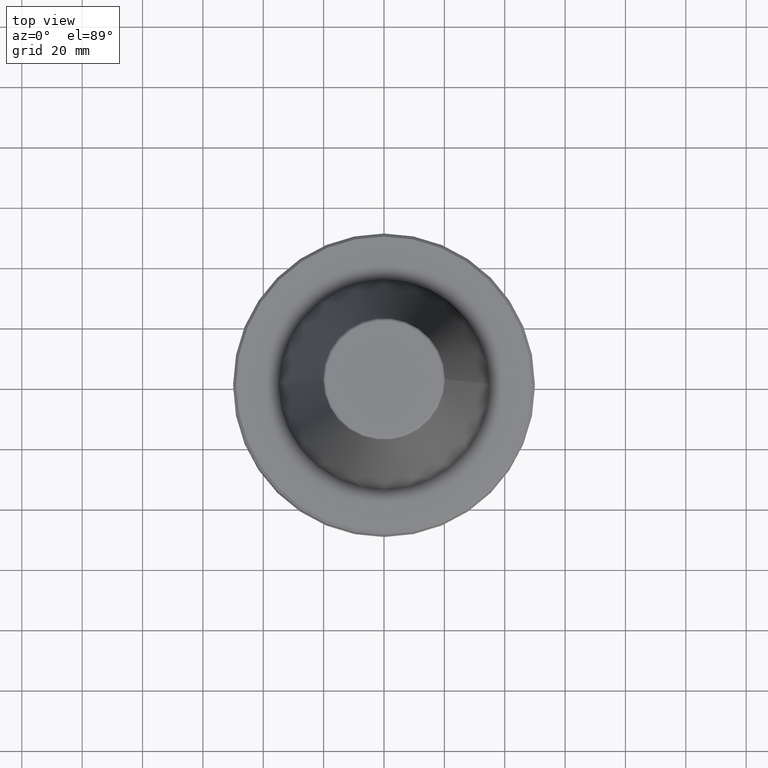
[diagram: clean part render]
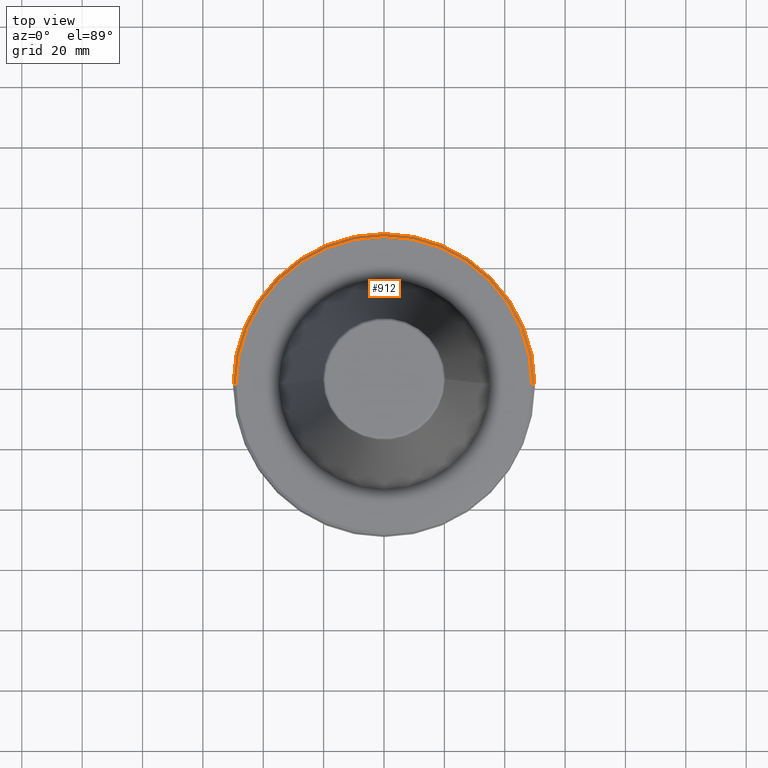
[diagram: same view with one face highlighted and labeled with its STEP entity id]
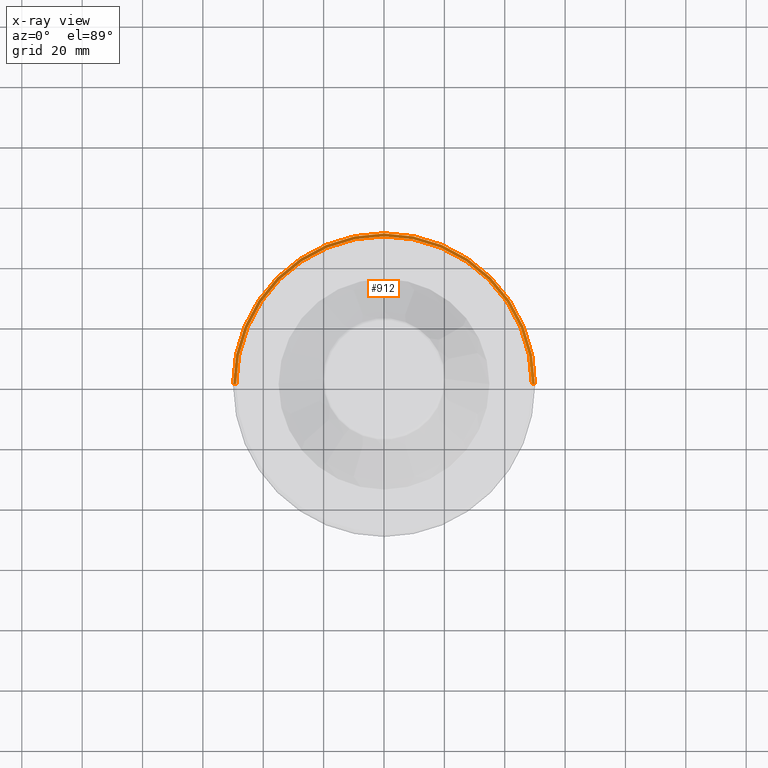
[diagram: x-ray of the same camera — body ghosted, the highlighted face saturated]
A machine part, top view. The second image highlights one B-rep face of the part: STEP entity #912.
The next image is the same camera in x-ray: the body ghosted, the highlighted face saturated — about 0% of this face is hidden behind the body in this view.
In plain terms, the highlighted conical surface has half-angle 45 deg.
Its self-contained STEP definition (entity closure, byte-faithful):
#9 = LINE ( 'NONE', #976, #795 ) ;
#14 = ORIENTED_EDGE ( 'NONE', *, *, #464, .T. ) ;
#82 = CARTESIAN_POINT ( 'NONE',  ( -49.00000000000015600, 0.0000000000000000000, -3.000000000001223900 ) ) ;
#88 = LINE ( 'NONE', #478, #473 ) ;
#105 = CARTESIAN_POINT ( 'NONE',  ( -50.00000000000027000, 6.123233995736798400E-015, -4.000000000001335800 ) ) ;
#142 = EDGE_LOOP ( 'NONE', ( #703, #396, #14, #990 ) ) ;
#180 = AXIS2_PLACEMENT_3D ( 'NONE', #210, #257, #313 ) ;
#186 = CIRCLE ( 'NONE', #381, 49.00000000000015600 ) ;
#210 = CARTESIAN_POINT ( 'NONE',  ( 0.0000000000000000000, 0.0000000000000000000, -4.000000000001335800 ) ) ;
#247 = DIRECTION ( 'NONE',  ( -0.7071067811865474600, 0.0000000000000000000, -0.7071067811865475700 ) ) ;
#252 = EDGE_CURVE ( 'NONE', #782, #487, #88, .T. ) ;
#257 = DIRECTION ( 'NONE',  ( 0.0000000000000000000, 0.0000000000000000000, -1.000000000000000000 ) ) ;
#259 = VERTEX_POINT ( 'NONE', #105 ) ;
#262 = CARTESIAN_POINT ( 'NONE',  ( 0.0000000000000000000, 0.0000000000000000000, -3.000000000001223900 ) ) ;
#309 = CARTESIAN_POINT ( 'NONE',  ( 49.00000000000015600, 6.062001655779424500E-015, -3.000000000001223900 ) ) ;
#313 = DIRECTION ( 'NONE',  ( -1.000000000000000000, 0.0000000000000000000, 0.0000000000000000000 ) ) ;
#381 = AXIS2_PLACEMENT_3D ( 'NONE', #262, #998, #579 ) ;
#394 = CONICAL_SURFACE ( 'NONE', #180, 50.00000000000027000, 0.7853981633974482800 ) ;
#396 = ORIENTED_EDGE ( 'NONE', *, *, #252, .T. ) ;
#405 = EDGE_CURVE ( 'NONE', #782, #753, #186, .T. ) ;
#410 = FACE_OUTER_BOUND ( 'NONE', #142, .T. ) ;
#464 = EDGE_CURVE ( 'NONE', #487, #259, #743, .T. ) ;
#473 = VECTOR ( 'NONE', #808, 1000.000000000000000 ) ;
#478 = CARTESIAN_POINT ( 'NONE',  ( 50.00000000000027000, 6.123233995736798400E-015, -4.000000000001335800 ) ) ;
#487 = VERTEX_POINT ( 'NONE', #626 ) ;
#500 = DIRECTION ( 'NONE',  ( -0.0000000000000000000, -0.0000000000000000000, 1.000000000000000000 ) ) ;
#576 = CARTESIAN_POINT ( 'NONE',  ( 0.0000000000000000000, 0.0000000000000000000, -4.000000000001335800 ) ) ;
#579 = DIRECTION ( 'NONE',  ( 1.000000000000000000, 0.0000000000000000000, 0.0000000000000000000 ) ) ;
#626 = CARTESIAN_POINT ( 'NONE',  ( 50.00000000000027000, 0.0000000000000000000, -4.000000000001335800 ) ) ;
#703 = ORIENTED_EDGE ( 'NONE', *, *, #405, .F. ) ;
#743 = CIRCLE ( 'NONE', #868, 50.00000000000027000 ) ;
#753 = VERTEX_POINT ( 'NONE', #82 ) ;
#782 = VERTEX_POINT ( 'NONE', #309 ) ;
#795 = VECTOR ( 'NONE', #247, 1000.000000000000000 ) ;
#808 = DIRECTION ( 'NONE',  ( 0.7071067811865474600, 8.659560562354931600E-017, -0.7071067811865475700 ) ) ;
#820 = EDGE_CURVE ( 'NONE', #753, #259, #9, .T. ) ;
#834 = DIRECTION ( 'NONE',  ( 1.000000000000000000, 0.0000000000000000000, 0.0000000000000000000 ) ) ;
#868 = AXIS2_PLACEMENT_3D ( 'NONE', #576, #500, #834 ) ;
#912 = ADVANCED_FACE ( 'NONE', ( #410 ), #394, .T. ) ;
#976 = CARTESIAN_POINT ( 'NONE',  ( -50.00000000000027000, 0.0000000000000000000, -4.000000000001335800 ) ) ;
#990 = ORIENTED_EDGE ( 'NONE', *, *, #820, .F. ) ;
#998 = DIRECTION ( 'NONE',  ( -0.0000000000000000000, -0.0000000000000000000, 1.000000000000000000 ) ) ;